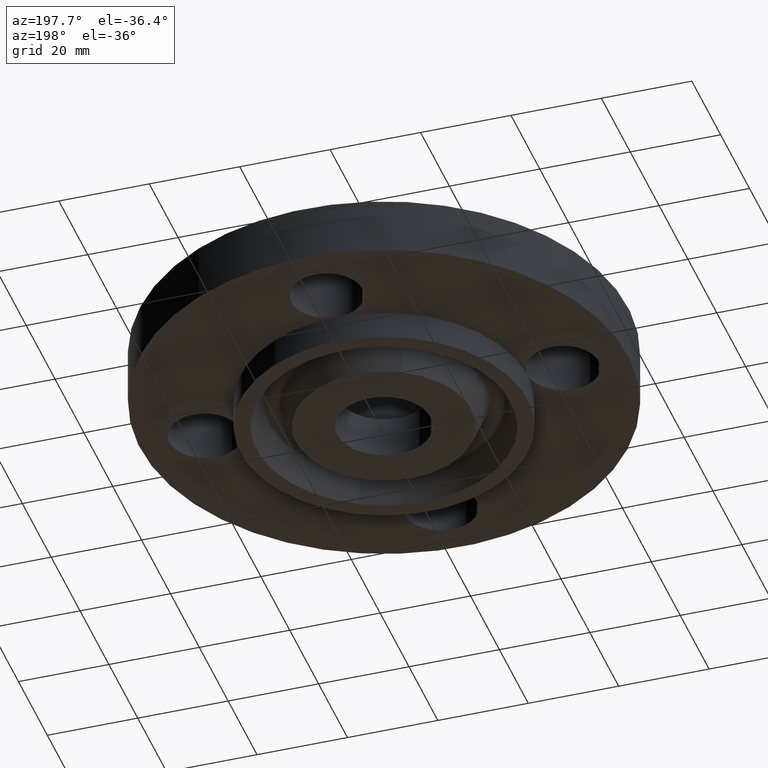
[diagram: clean part render]
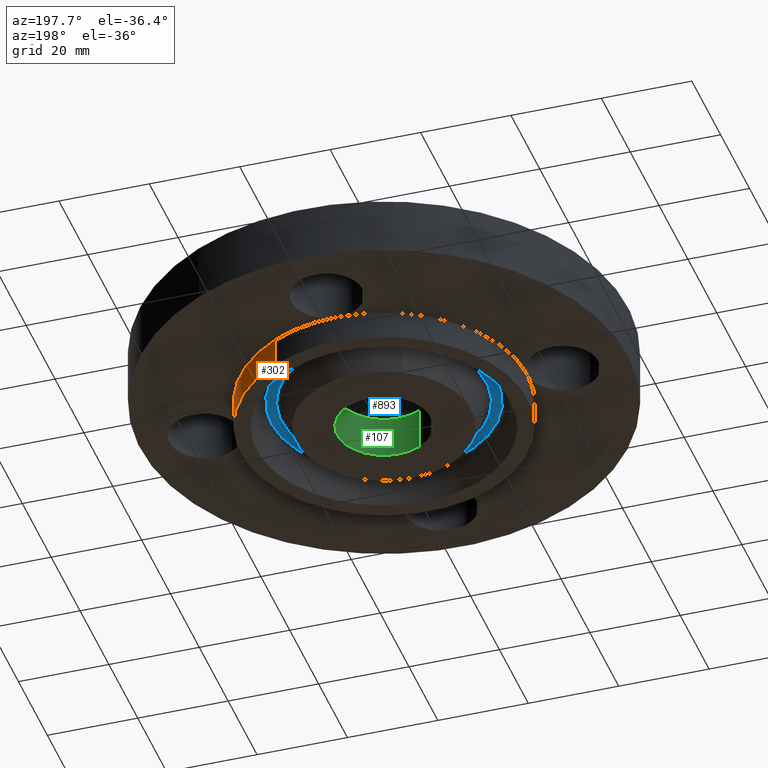
[diagram: same view with three faces highlighted in distinct colors, each labeled with its STEP entity id]
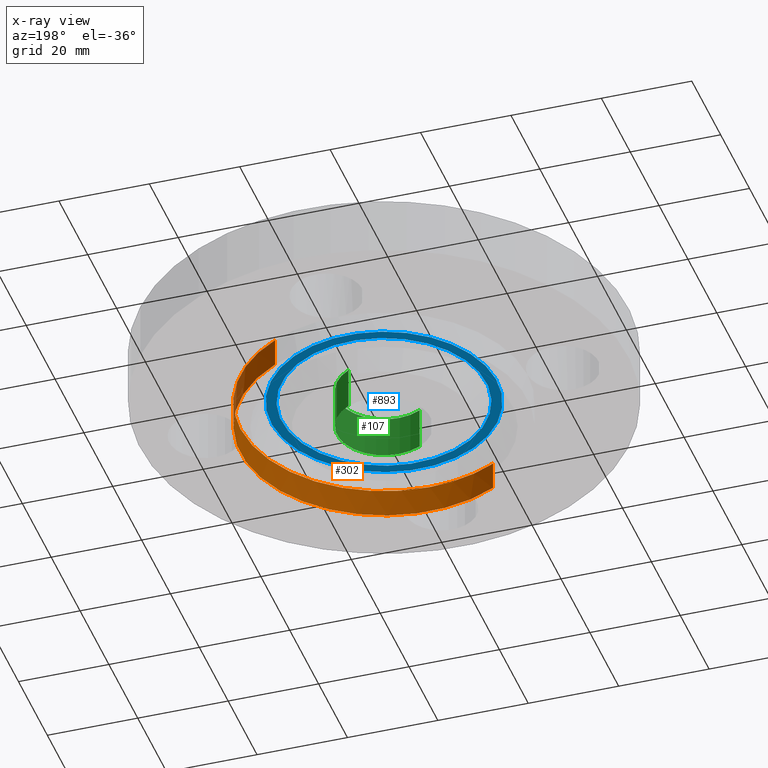
[diagram: x-ray of the same camera — body ghosted, the three highlighted faces saturated]
A machine part, auxiliary view with three faces highlighted in distinct colors.
The next image is the same camera in x-ray (body ghosted, the three faces saturated) — at least one of them is partly hidden behind the body in this view.
Their STEP definitions:

[orange] entity #302 — the highlighted cylindrical surface (partial cylindrical patch) has radius 31.75 mm, axis along (0, 0, -1).
#202=AXIS2_PLACEMENT_3D('Circle Axis2P3D',#200,#201,$) ;
#231=AXIS2_PLACEMENT_3D('Cylinder Axis2P3D',#228,#229,#230) ;
#277=AXIS2_PLACEMENT_3D('Circle Axis2P3D',#275,#276,$) ;
#284=AXIS2_PLACEMENT_3D('Circle Axis2P3D',#282,#283,$) ;
#291=AXIS2_PLACEMENT_3D('Circle Axis2P3D',#289,#290,$) ;
#195=CARTESIAN_POINT('Vertex',(-0.599281923258,-1.09697820237,-0.250000000001)) ;
#197=CARTESIAN_POINT('Vertex',(0.599281923258,1.09697820237,-0.250000000001)) ;
#200=CARTESIAN_POINT('Axis2P3D Location',(0.,0.,-0.250000000001)) ;
#228=CARTESIAN_POINT('Axis2P3D Location',(0.,0.,0.185000000001)) ;
#233=CARTESIAN_POINT('Line Origine',(-0.599281923258,-1.09697820237,-0.125000000001)) ;
#237=CARTESIAN_POINT('Vertex',(-0.599281923258,-1.09697820237,1.04902962957E-016)) ;
#258=CARTESIAN_POINT('Vertex',(0.599281923258,1.09697820237,1.04902962957E-016)) ;
#261=CARTESIAN_POINT('Line Origine',(0.599281923258,1.09697820237,-0.125000000001)) ;
#275=CARTESIAN_POINT('Axis2P3D Location',(0.,0.,1.04902962957E-016)) ;
#279=CARTESIAN_POINT('Vertex',(1.25000000001,-2.79741234551E-016,0.)) ;
#282=CARTESIAN_POINT('Axis2P3D Location',(0.,0.,1.04902962957E-016)) ;
#286=CARTESIAN_POINT('Vertex',(-1.04991633196E-016,-1.25000000001,0.)) ;
#289=CARTESIAN_POINT('Axis2P3D Location',(0.,0.,1.04902962957E-016)) ;
#201=DIRECTION('Axis2P3D Direction',(0.,0.,-0.0393700787402)) ;
#229=DIRECTION('Axis2P3D Direction',(0.,0.,-0.0393700787402)) ;
#230=DIRECTION('Axis2P3D XDirection',(0.0188750212049,0.0345504945626,0.)) ;
#234=DIRECTION('Vector Direction',(0.,0.,-0.0393700787402)) ;
#262=DIRECTION('Vector Direction',(0.,0.,-0.0393700787402)) ;
#276=DIRECTION('Axis2P3D Direction',(0.,0.,-0.0393700787402)) ;
#283=DIRECTION('Axis2P3D Direction',(0.,0.,-0.0393700787402)) ;
#290=DIRECTION('Axis2P3D Direction',(0.,0.,-0.0393700787402)) ;
#235=VECTOR('Line Direction',#234,0.0393700787402) ;
#263=VECTOR('Line Direction',#262,0.0393700787402) ;
#295=ORIENTED_EDGE('',*,*,#204,.F.) ;
#296=ORIENTED_EDGE('',*,*,#265,.T.) ;
#297=ORIENTED_EDGE('',*,*,#281,.T.) ;
#298=ORIENTED_EDGE('',*,*,#288,.T.) ;
#299=ORIENTED_EDGE('',*,*,#293,.T.) ;
#300=ORIENTED_EDGE('',*,*,#239,.F.) ;
#302=ADVANCED_FACE('PartBody',(#301),#232,.T.) ;
#203=CIRCLE('generated circle',#202,1.25000000001) ;
#278=CIRCLE('generated circle',#277,1.25000000001) ;
#285=CIRCLE('generated circle',#284,1.25000000001) ;
#292=CIRCLE('generated circle',#291,1.25000000001) ;
#232=CYLINDRICAL_SURFACE('generated cylinder',#231,1.25000000001) ;
#204=EDGE_CURVE('',#198,#196,#203,.T.) ;
#239=EDGE_CURVE('',#196,#238,#236,.F.) ;
#265=EDGE_CURVE('',#198,#259,#264,.F.) ;
#281=EDGE_CURVE('',#259,#280,#278,.T.) ;
#288=EDGE_CURVE('',#280,#287,#285,.T.) ;
#293=EDGE_CURVE('',#287,#238,#292,.T.) ;
#294=EDGE_LOOP('',(#295,#296,#297,#298,#299,#300)) ;
#301=FACE_OUTER_BOUND('',#294,.T.) ;
#236=LINE('Line',#233,#235) ;
#264=LINE('Line',#261,#263) ;
#196=VERTEX_POINT('',#195) ;
#198=VERTEX_POINT('',#197) ;
#238=VERTEX_POINT('',#237) ;
#259=VERTEX_POINT('',#258) ;
#280=VERTEX_POINT('',#279) ;
#287=VERTEX_POINT('',#286) ;

[blue] entity #893 — the highlighted planar face has unit normal (0, 0, -1).
#306=AXIS2_PLACEMENT_3D('Plane Axis2P3D',#303,#304,#305) ;
#799=AXIS2_PLACEMENT_3D('Circle Axis2P3D',#797,#798,$) ;
#818=AXIS2_PLACEMENT_3D('Circle Axis2P3D',#816,#817,$) ;
#877=AXIS2_PLACEMENT_3D('Circle Axis2P3D',#875,#876,$) ;
#886=AXIS2_PLACEMENT_3D('Circle Axis2P3D',#884,#885,$) ;
#303=CARTESIAN_POINT('Axis2P3D Location',(0.,1.25000000001,0.)) ;
#794=CARTESIAN_POINT('Vertex',(0.471070288742,-0.862288379607,-6.99353086378E-017)) ;
#797=CARTESIAN_POINT('Axis2P3D Location',(0.,0.,-6.99353086378E-017)) ;
#801=CARTESIAN_POINT('Vertex',(-0.471070288742,0.862288379607,-6.99353086378E-017)) ;
#816=CARTESIAN_POINT('Axis2P3D Location',(0.,0.,-6.99353086378E-017)) ;
#875=CARTESIAN_POINT('Axis2P3D Location',(0.,0.,0.)) ;
#879=CARTESIAN_POINT('Vertex',(0.427852596144,-0.783178923945,7.43062654277E-017)) ;
#881=CARTESIAN_POINT('Vertex',(-0.427852596144,0.783178923945,7.43062654277E-017)) ;
#884=CARTESIAN_POINT('Axis2P3D Location',(0.,0.,0.)) ;
#304=DIRECTION('Axis2P3D Direction',(0.,0.,-0.0393700787402)) ;
#305=DIRECTION('Axis2P3D XDirection',(0.0393700787402,0.,0.)) ;
#798=DIRECTION('Axis2P3D Direction',(0.,0.,0.0393700787402)) ;
#817=DIRECTION('Axis2P3D Direction',(0.,0.,0.0393700787402)) ;
#876=DIRECTION('Axis2P3D Direction',(0.,0.,-0.0393700787402)) ;
#885=DIRECTION('Axis2P3D Direction',(0.,0.,-0.0393700787402)) ;
#872=ORIENTED_EDGE('',*,*,#820,.F.) ;
#873=ORIENTED_EDGE('',*,*,#803,.F.) ;
#890=ORIENTED_EDGE('',*,*,#883,.T.) ;
#891=ORIENTED_EDGE('',*,*,#888,.T.) ;
#892=FACE_BOUND('',#889,.T.) ;
#893=ADVANCED_FACE('PartBody',(#874,#892),#307,.T.) ;
#800=CIRCLE('generated circle',#799,0.982572372164) ;
#819=CIRCLE('generated circle',#818,0.982572372164) ;
#878=CIRCLE('generated circle',#877,0.892427627843) ;
#887=CIRCLE('generated circle',#886,0.892427627843) ;
#803=EDGE_CURVE('',#795,#802,#800,.T.) ;
#820=EDGE_CURVE('',#802,#795,#819,.T.) ;
#883=EDGE_CURVE('',#880,#882,#878,.F.) ;
#888=EDGE_CURVE('',#882,#880,#887,.F.) ;
#871=EDGE_LOOP('',(#872,#873)) ;
#889=EDGE_LOOP('',(#890,#891)) ;
#874=FACE_OUTER_BOUND('',#871,.T.) ;
#307=PLANE('',#306) ;
#795=VERTEX_POINT('',#794) ;
#802=VERTEX_POINT('',#801) ;
#880=VERTEX_POINT('',#879) ;
#882=VERTEX_POINT('',#881) ;

[green] entity #107 — the highlighted cylindrical surface (partial cylindrical patch) has radius 10.3505 mm, axis along (0, 0, -1).
#69=AXIS2_PLACEMENT_3D('Circle Axis2P3D',#67,#68,$) ;
#80=AXIS2_PLACEMENT_3D('Cylinder Axis2P3D',#77,#78,#79) ;
#91=AXIS2_PLACEMENT_3D('Circle Axis2P3D',#89,#90,$) ;
#62=CARTESIAN_POINT('Vertex',(-0.195365906982,-0.357614893972,0.12)) ;
#64=CARTESIAN_POINT('Vertex',(0.195365906982,0.357614893972,0.12)) ;
#67=CARTESIAN_POINT('Axis2P3D Location',(6.99353086378E-017,0.,0.12)) ;
#77=CARTESIAN_POINT('Axis2P3D Location',(0.,0.,0.185000000001)) ;
#82=CARTESIAN_POINT('Line Origine',(0.195365906982,0.357614893972,-0.0650000000003)) ;
#86=CARTESIAN_POINT('Vertex',(0.195365906982,0.357614893972,-0.250000000001)) ;
#89=CARTESIAN_POINT('Axis2P3D Location',(0.,0.,-0.250000000001)) ;
#93=CARTESIAN_POINT('Vertex',(-0.195365906982,-0.357614893972,-0.250000000001)) ;
#96=CARTESIAN_POINT('Line Origine',(-0.195365906982,-0.357614893972,-0.0650000000003)) ;
#68=DIRECTION('Axis2P3D Direction',(0.,0.,-0.0393700787402)) ;
#78=DIRECTION('Axis2P3D Direction',(0.,0.,-0.0393700787402)) ;
#79=DIRECTION('Axis2P3D XDirection',(-0.0188750212049,-0.0345504945626,0.)) ;
#83=DIRECTION('Vector Direction',(0.,0.,-0.0393700787402)) ;
#90=DIRECTION('Axis2P3D Direction',(0.,0.,-0.0393700787402)) ;
#97=DIRECTION('Vector Direction',(0.,0.,-0.0393700787402)) ;
#84=VECTOR('Line Direction',#83,0.0393700787402) ;
#98=VECTOR('Line Direction',#97,0.0393700787402) ;
#102=ORIENTED_EDGE('',*,*,#88,.T.) ;
#103=ORIENTED_EDGE('',*,*,#95,.T.) ;
#104=ORIENTED_EDGE('',*,*,#100,.F.) ;
#105=ORIENTED_EDGE('',*,*,#71,.F.) ;
#107=ADVANCED_FACE('PartBody',(#106),#81,.F.) ;
#70=CIRCLE('generated circle',#69,0.407500000002) ;
#92=CIRCLE('generated circle',#91,0.407500000002) ;
#81=CYLINDRICAL_SURFACE('generated cylinder',#80,0.407500000002) ;
#71=EDGE_CURVE('',#65,#63,#70,.T.) ;
#88=EDGE_CURVE('',#65,#87,#85,.T.) ;
#95=EDGE_CURVE('',#87,#94,#92,.T.) ;
#100=EDGE_CURVE('',#63,#94,#99,.T.) ;
#101=EDGE_LOOP('',(#102,#103,#104,#105)) ;
#106=FACE_OUTER_BOUND('',#101,.T.) ;
#85=LINE('Line',#82,#84) ;
#99=LINE('Line',#96,#98) ;
#63=VERTEX_POINT('',#62) ;
#65=VERTEX_POINT('',#64) ;
#87=VERTEX_POINT('',#86) ;
#94=VERTEX_POINT('',#93) ;